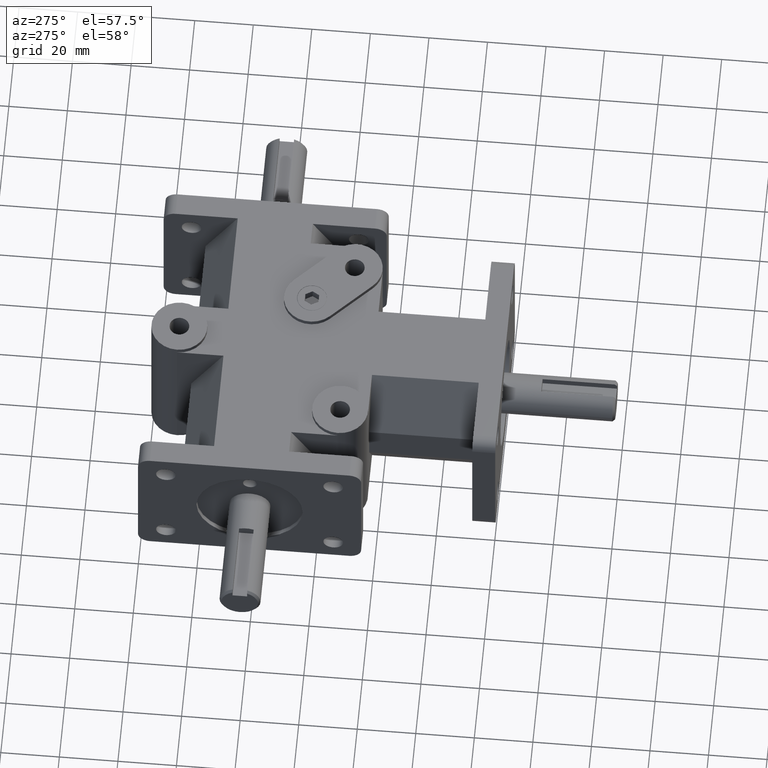
[diagram: clean part render]
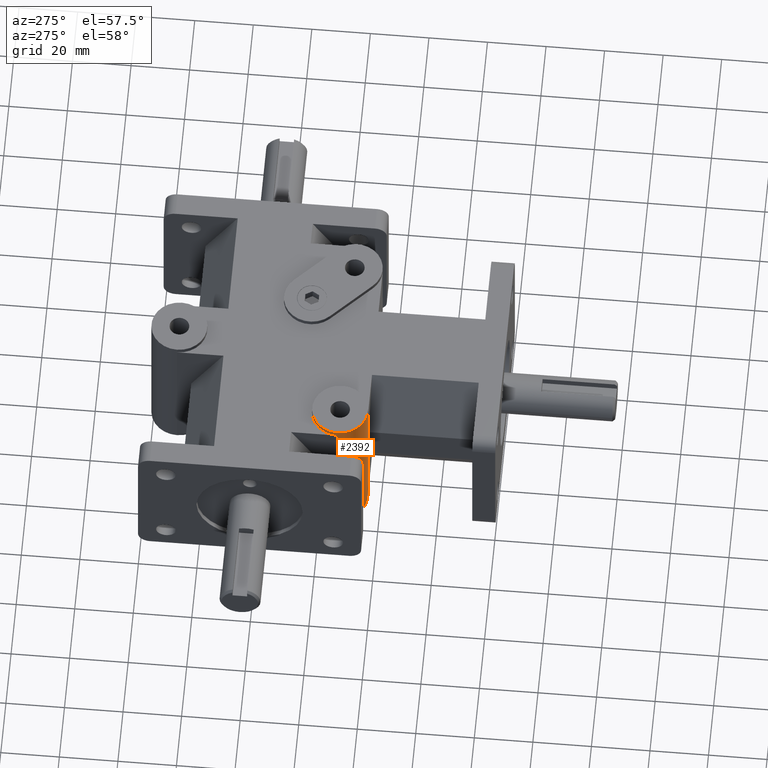
[diagram: same view with one face highlighted and labeled with its STEP entity id]
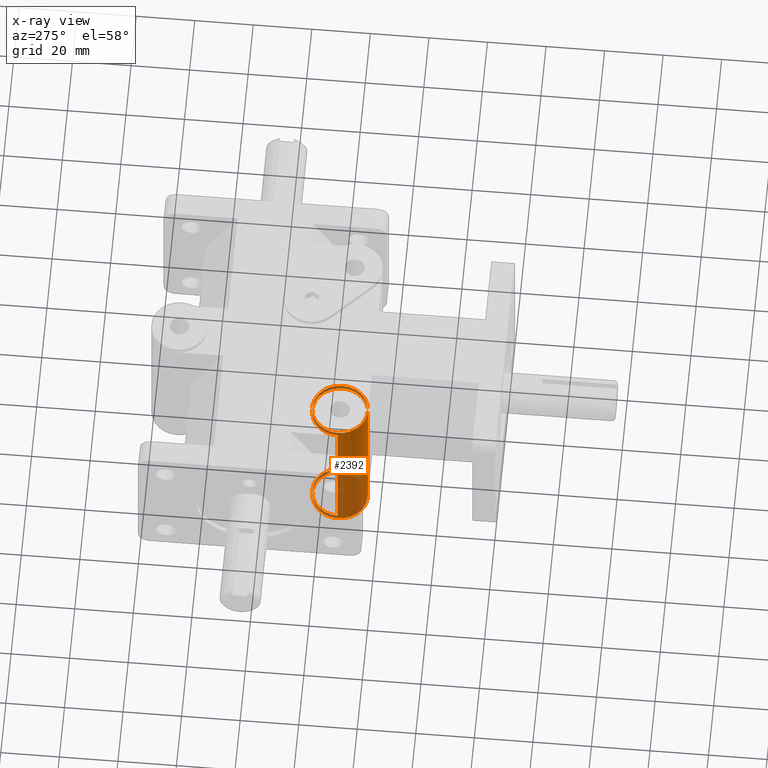
[diagram: x-ray of the same camera — body ghosted, the highlighted face saturated]
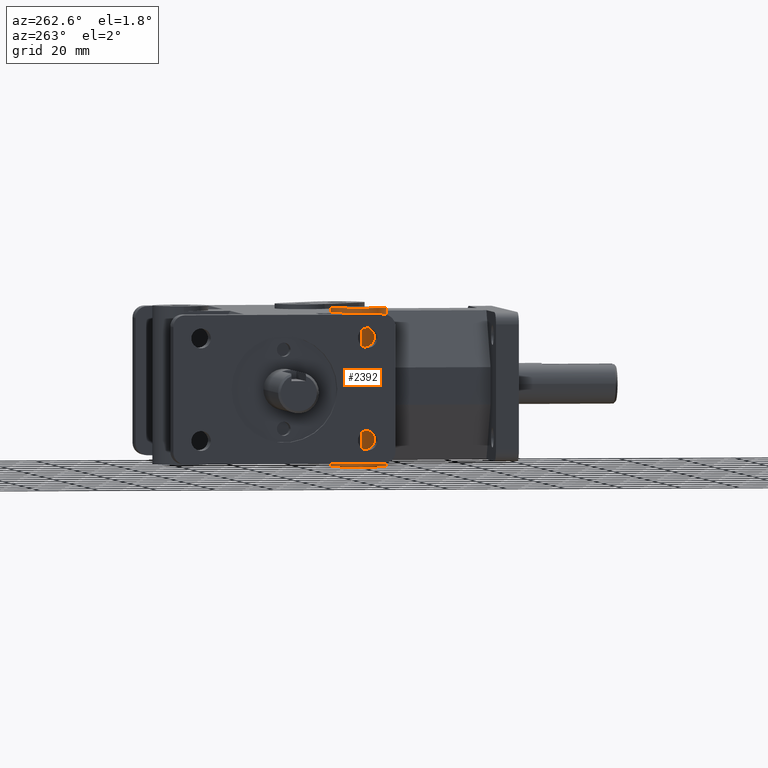
[diagram: same view with one face highlighted and labeled with its STEP entity id]
A machine part, auxiliary view. The second image highlights one B-rep face of the part: STEP entity #2392.
The next image is the same camera in x-ray: the body ghosted, the highlighted face saturated — about 42% of this face is hidden behind the body in this view.
A second angle (auxiliary view) of the same face is appended — the face is thin or edge-on in the first view.
In plain terms, the highlighted cylindrical surface (bore or boss wall) has radius 9.525 mm, axis along (0, 0, -1).
Its self-contained STEP definition (entity closure, byte-faithful):
#273=FACE_OUTER_BOUND('',#441,.T.);
#441=EDGE_LOOP('',(#2184,#2185,#2186,#2187,#2188,#2189,#2190,#2191,#2192,
#2193));
#667=LINE('',#4025,#889);
#668=LINE('',#4027,#890);
#669=LINE('',#4028,#891);
#670=LINE('',#4029,#892);
#889=VECTOR('',#3322,1.);
#890=VECTOR('',#3325,9.525);
#891=VECTOR('',#3326,1.);
#892=VECTOR('',#3327,9.525);
#965=CIRCLE('',#2537,9.525);
#970=CIRCLE('',#2544,9.525);
#998=CIRCLE('',#2616,9.525);
#999=CIRCLE('',#2618,9.525);
#1143=VERTEX_POINT('',#3732);
#1144=VERTEX_POINT('',#3734);
#1151=VERTEX_POINT('',#3754);
#1152=VERTEX_POINT('',#3756);
#1219=VERTEX_POINT('',#3981);
#1220=VERTEX_POINT('',#3984);
#1405=EDGE_CURVE('',#1143,#1144,#965,.T.);
#1417=EDGE_CURVE('',#1151,#1152,#970,.T.);
#1531=EDGE_CURVE('',#1219,#1219,#998,.T.);
#1532=EDGE_CURVE('',#1220,#1220,#999,.T.);
#1550=EDGE_CURVE('',#1143,#1152,#667,.T.);
#1551=EDGE_CURVE('',#1220,#1152,#668,.T.);
#1552=EDGE_CURVE('',#1144,#1151,#669,.T.);
#1553=EDGE_CURVE('',#1143,#1219,#670,.T.);
#2184=ORIENTED_EDGE('',*,*,#1532,.T.);
#2185=ORIENTED_EDGE('',*,*,#1551,.T.);
#2186=ORIENTED_EDGE('',*,*,#1417,.F.);
#2187=ORIENTED_EDGE('',*,*,#1552,.F.);
#2188=ORIENTED_EDGE('',*,*,#1405,.F.);
#2189=ORIENTED_EDGE('',*,*,#1553,.T.);
#2190=ORIENTED_EDGE('',*,*,#1531,.T.);
#2191=ORIENTED_EDGE('',*,*,#1553,.F.);
#2192=ORIENTED_EDGE('',*,*,#1550,.T.);
#2193=ORIENTED_EDGE('',*,*,#1551,.F.);
#2268=CYLINDRICAL_SURFACE('',#2641,9.525);
#2392=ADVANCED_FACE('',(#273),#2268,.T.);
#2537=AXIS2_PLACEMENT_3D('',#3735,#3006,#3007);
#2544=AXIS2_PLACEMENT_3D('',#3757,#3027,#3028);
#2616=AXIS2_PLACEMENT_3D('',#3982,#3257,#3258);
#2618=AXIS2_PLACEMENT_3D('',#3985,#3261,#3262);
#2641=AXIS2_PLACEMENT_3D('',#4026,#3323,#3324);
#3006=DIRECTION('center_axis',(0.,0.,-1.));
#3007=DIRECTION('ref_axis',(1.,0.,0.));
#3027=DIRECTION('center_axis',(0.,0.,1.));
#3028=DIRECTION('ref_axis',(1.,0.,0.));
#3257=DIRECTION('center_axis',(0.,0.,-1.));
#3258=DIRECTION('ref_axis',(1.,0.,0.));
#3261=DIRECTION('center_axis',(0.,0.,1.));
#3262=DIRECTION('ref_axis',(1.,0.,0.));
#3322=DIRECTION('',(0.,0.,-1.));
#3323=DIRECTION('center_axis',(0.,0.,-1.));
#3324=DIRECTION('ref_axis',(1.,0.,0.));
#3325=DIRECTION('',(0.,0.,1.));
#3326=DIRECTION('',(0.,0.,-1.));
#3327=DIRECTION('',(0.,0.,1.));
#3732=CARTESIAN_POINT('',(-38.227,53.848,25.4));
#3734=CARTESIAN_POINT('',(-28.702,44.323,25.4));
#3735=CARTESIAN_POINT('Origin',(-28.702,53.848,25.4));
#3754=CARTESIAN_POINT('',(-28.702,44.323,-25.4));
#3756=CARTESIAN_POINT('',(-38.227,53.848,-25.4));
#3757=CARTESIAN_POINT('Origin',(-28.702,53.848,-25.4));
#3981=CARTESIAN_POINT('',(-38.227,53.848,27.051));
#3982=CARTESIAN_POINT('Origin',(-28.702,53.848,27.051));
#3984=CARTESIAN_POINT('',(-38.227,53.848,-27.051));
#3985=CARTESIAN_POINT('Origin',(-28.702,53.848,-27.051));
#4025=CARTESIAN_POINT('',(-38.227,53.848,0.));
#4026=CARTESIAN_POINT('Origin',(-28.702,53.848,0.));
#4027=CARTESIAN_POINT('',(-38.227,53.848,0.));
#4028=CARTESIAN_POINT('',(-28.702,44.323,0.));
#4029=CARTESIAN_POINT('',(-38.227,53.848,0.));